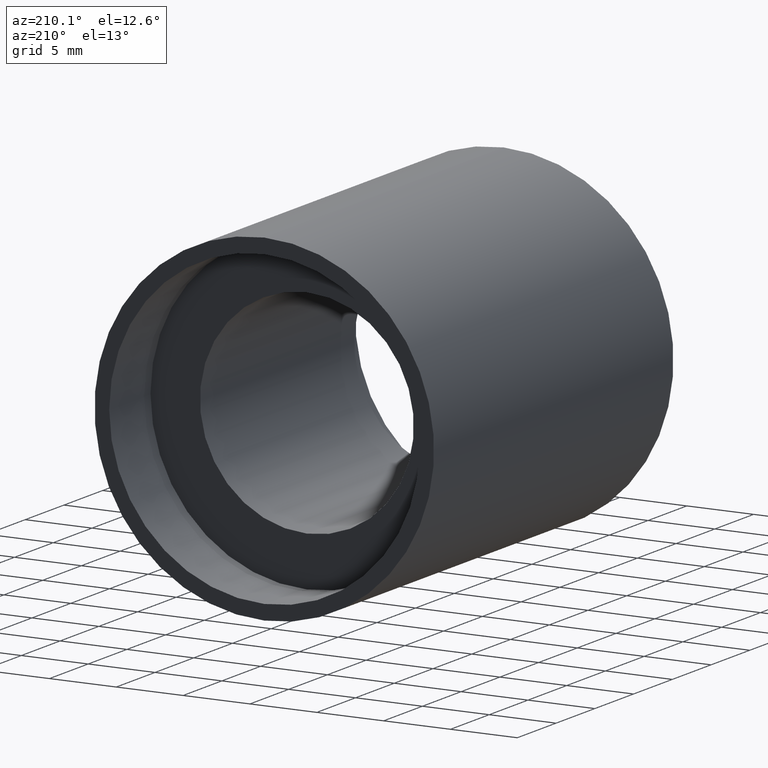
[diagram: clean part render]
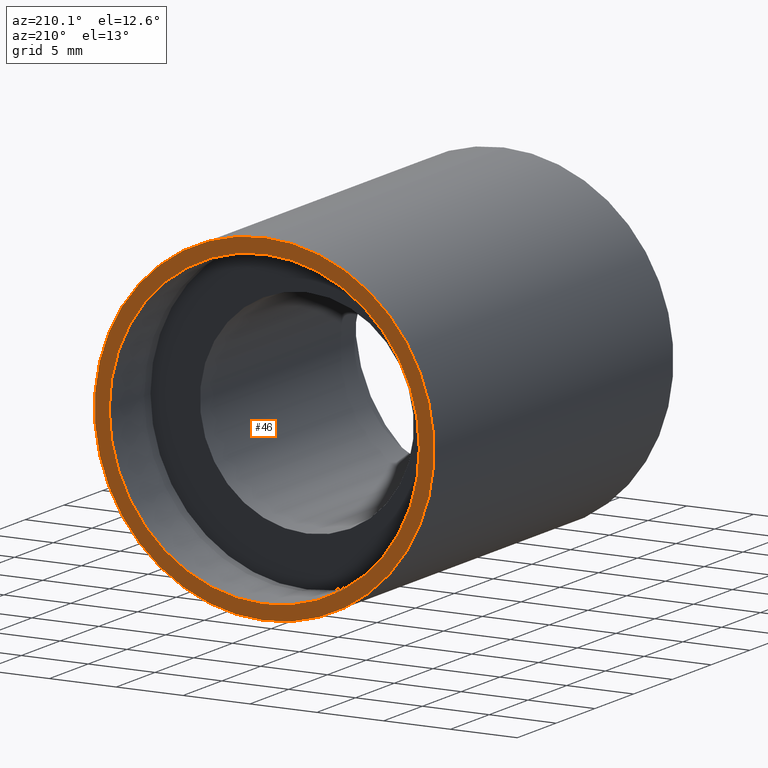
[diagram: same view with one face highlighted and labeled with its STEP entity id]
A machine part, auxiliary view. The second image highlights one B-rep face of the part: STEP entity #46.
In plain terms, the highlighted planar face has unit normal (0, -1, 0).
Its self-contained STEP definition (entity closure, byte-faithful):
#7 = CARTESIAN_POINT ( 'NONE',  ( 1.420590287010933700E-015, 30.89999999999998400, -11.60000000000003200 ) ) ;
#23 = CIRCLE ( 'NONE', #520, 11.60000000000003200 ) ;
#24 = EDGE_CURVE ( 'NONE', #193, #446, #360, .T. ) ;
#26 = EDGE_LOOP ( 'NONE', ( #154, #303 ) ) ;
#44 = EDGE_CURVE ( 'NONE', #446, #193, #23, .T. ) ;
#46 = ADVANCED_FACE ( 'NONE', ( #542, #400 ), #580, .F. ) ;
#64 = ORIENTED_EDGE ( 'NONE', *, *, #24, .F. ) ;
#74 = CARTESIAN_POINT ( 'NONE',  ( 1.555301434917140800E-015, 30.89999999999998400, -12.70000000000001900 ) ) ;
#113 = EDGE_LOOP ( 'NONE', ( #190, #64 ) ) ;
#142 = DIRECTION ( 'NONE',  ( 0.0000000000000000000, -0.0000000000000000000, -1.000000000000000000 ) ) ;
#154 = ORIENTED_EDGE ( 'NONE', *, *, #315, .T. ) ;
#161 = VERTEX_POINT ( 'NONE', #347 ) ;
#165 = DIRECTION ( 'NONE',  ( 0.0000000000000000000, 0.0000000000000000000, 1.000000000000000000 ) ) ;
#187 = DIRECTION ( 'NONE',  ( 0.0000000000000000000, 0.0000000000000000000, 1.000000000000000000 ) ) ;
#189 = CARTESIAN_POINT ( 'NONE',  ( 0.0000000000000000000, 30.89999999999998400, 0.0000000000000000000 ) ) ;
#190 = ORIENTED_EDGE ( 'NONE', *, *, #44, .F. ) ;
#193 = VERTEX_POINT ( 'NONE', #7 ) ;
#234 = DIRECTION ( 'NONE',  ( 0.0000000000000000000, 0.0000000000000000000, 1.000000000000000000 ) ) ;
#235 = DIRECTION ( 'NONE',  ( -0.0000000000000000000, 1.000000000000000000, -0.0000000000000000000 ) ) ;
#272 = CARTESIAN_POINT ( 'NONE',  ( 0.0000000000000000000, 30.89999999999998400, 0.0000000000000000000 ) ) ;
#287 = DIRECTION ( 'NONE',  ( -0.0000000000000000000, 1.000000000000000000, -0.0000000000000000000 ) ) ;
#303 = ORIENTED_EDGE ( 'NONE', *, *, #579, .T. ) ;
#305 = CARTESIAN_POINT ( 'NONE',  ( 0.0000000000000000000, 30.89999999999998400, 0.0000000000000000000 ) ) ;
#315 = EDGE_CURVE ( 'NONE', #161, #452, #577, .T. ) ;
#324 = AXIS2_PLACEMENT_3D ( 'NONE', #272, #235, #234 ) ;
#332 = CARTESIAN_POINT ( 'NONE',  ( 11.60000000000003200, 30.89999999999998400, 0.0000000000000000000 ) ) ;
#339 = DIRECTION ( 'NONE',  ( -0.0000000000000000000, 1.000000000000000000, -0.0000000000000000000 ) ) ;
#347 = CARTESIAN_POINT ( 'NONE',  ( 0.0000000000000000000, 30.89999999999998400, 12.70000000000001900 ) ) ;
#352 = AXIS2_PLACEMENT_3D ( 'NONE', #332, #391, #142 ) ;
#356 = AXIS2_PLACEMENT_3D ( 'NONE', #483, #287, #187 ) ;
#360 = CIRCLE ( 'NONE', #356, 11.60000000000003200 ) ;
#391 = DIRECTION ( 'NONE',  ( 0.0000000000000000000, -1.000000000000000000, 0.0000000000000000000 ) ) ;
#400 = FACE_OUTER_BOUND ( 'NONE', #26, .T. ) ;
#412 = DIRECTION ( 'NONE',  ( -0.0000000000000000000, 1.000000000000000000, -0.0000000000000000000 ) ) ;
#432 = DIRECTION ( 'NONE',  ( 0.0000000000000000000, 0.0000000000000000000, 1.000000000000000000 ) ) ;
#446 = VERTEX_POINT ( 'NONE', #568 ) ;
#452 = VERTEX_POINT ( 'NONE', #74 ) ;
#483 = CARTESIAN_POINT ( 'NONE',  ( 0.0000000000000000000, 30.89999999999998400, 0.0000000000000000000 ) ) ;
#520 = AXIS2_PLACEMENT_3D ( 'NONE', #189, #339, #432 ) ;
#542 = FACE_BOUND ( 'NONE', #113, .T. ) ;
#564 = CIRCLE ( 'NONE', #324, 12.70000000000001900 ) ;
#567 = AXIS2_PLACEMENT_3D ( 'NONE', #305, #412, #165 ) ;
#568 = CARTESIAN_POINT ( 'NONE',  ( 0.0000000000000000000, 30.89999999999998400, 11.60000000000003200 ) ) ;
#577 = CIRCLE ( 'NONE', #567, 12.70000000000001900 ) ;
#579 = EDGE_CURVE ( 'NONE', #452, #161, #564, .T. ) ;
#580 = PLANE ( 'NONE',  #352 ) ;